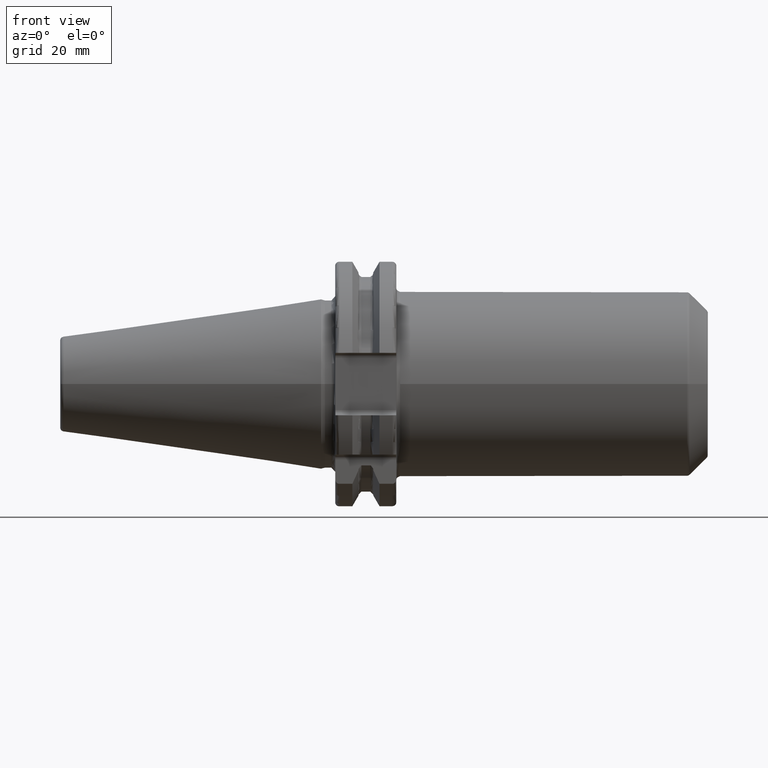
[diagram: clean part render]
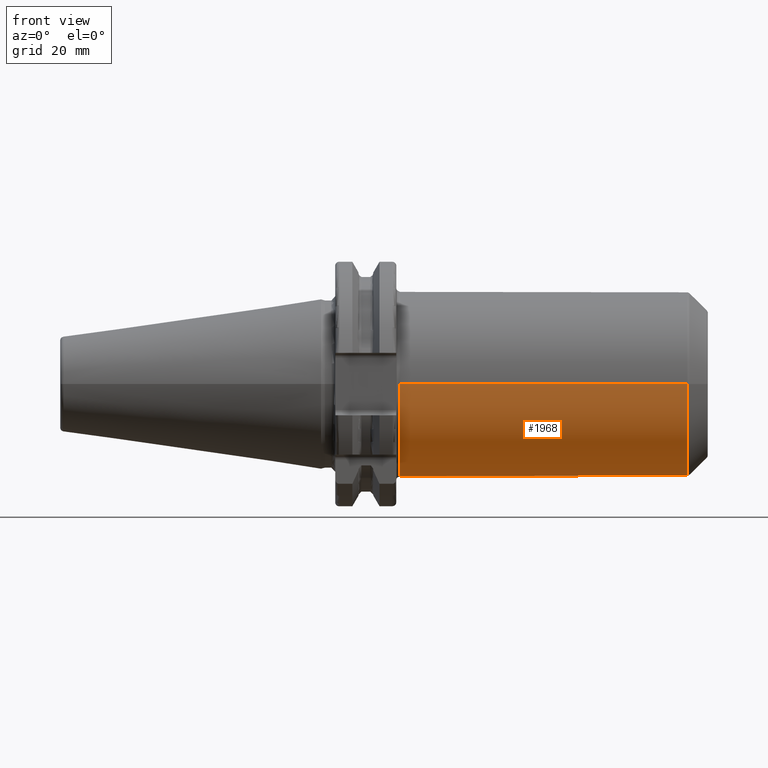
[diagram: same view with one face highlighted and labeled with its STEP entity id]
A machine part, front view. The second image highlights one B-rep face of the part: STEP entity #1968.
In plain terms, the highlighted cylindrical surface (partial cylindrical patch) has radius 24 mm, axis along (1, 0, 0).
Its self-contained STEP definition (entity closure, byte-faithful):
#134=CARTESIAN_POINT('',(1.905E1,0.E0,0.E0));
#135=DIRECTION('',(-1.E0,0.E0,0.E0));
#136=DIRECTION('',(0.E0,1.E0,0.E0));
#137=AXIS2_PLACEMENT_3D('',#134,#135,#136);
#252=CARTESIAN_POINT('',(9.458578643763E1,0.E0,0.E0));
#253=DIRECTION('',(-1.E0,0.E0,0.E0));
#254=DIRECTION('',(0.E0,1.E0,0.E0));
#255=AXIS2_PLACEMENT_3D('',#252,#253,#254);
#257=DIRECTION('',(-1.E0,0.E0,2.521249668337E-13));
#258=VECTOR('',#257,7.553578643763E1);
#259=CARTESIAN_POINT('',(9.458578643763E1,2.4E1,-1.904249821546E-11));
#260=LINE('',#259,#258);
#261=DIRECTION('',(-1.E0,0.E0,0.E0));
#262=VECTOR('',#261,1.E0);
#263=CARTESIAN_POINT('',(2.005E1,2.279133706023E1,-7.520302853414E0));
#264=LINE('',#263,#262);
#265=CARTESIAN_POINT('',(2.005E1,0.E0,0.E0));
#266=DIRECTION('',(1.E0,0.E0,0.E0));
#267=DIRECTION('',(0.E0,-1.E0,0.E0));
#268=AXIS2_PLACEMENT_3D('',#265,#266,#267);
#270=DIRECTION('',(-9.999999999953E-1,4.371371797497E-11,-3.063276622315E-6));
#271=VECTOR('',#270,7.453578643798E1);
#272=CARTESIAN_POINT('',(9.458578643763E1,-2.4E1,1.904139601998E-11));
#273=LINE('',#272,#271);
#1601=CARTESIAN_POINT('',(2.005E1,-2.4E1,0.E0));
#1602=CARTESIAN_POINT('',(2.005E1,2.279133706023E1,-7.520302853414E0));
#1603=VERTEX_POINT('',#1601);
#1604=VERTEX_POINT('',#1602);
#1619=CARTESIAN_POINT('',(9.458578643763E1,2.4E1,0.E0));
#1620=CARTESIAN_POINT('',(9.458578643763E1,-2.4E1,0.E0));
#1621=VERTEX_POINT('',#1619);
#1622=VERTEX_POINT('',#1620);
#1629=CARTESIAN_POINT('',(1.905E1,2.279133706023E1,-7.520302853414E0));
#1630=VERTEX_POINT('',#1629);
#1631=CARTESIAN_POINT('',(1.905E1,2.4E1,0.E0));
#1632=VERTEX_POINT('',#1631);
#1955=CARTESIAN_POINT('',(1.50025E1,0.E0,0.E0));
#1956=DIRECTION('',(1.E0,0.E0,0.E0));
#1957=DIRECTION('',(0.E0,-1.E0,0.E0));
#1958=AXIS2_PLACEMENT_3D('',#1955,#1956,#1957);
#1959=CYLINDRICAL_SURFACE('',#1958,2.4E1);
#1960=ORIENTED_EDGE('',*,*,#1946,.F.);
#1961=ORIENTED_EDGE('',*,*,#1921,.T.);
#1962=ORIENTED_EDGE('',*,*,#1808,.T.);
#1963=ORIENTED_EDGE('',*,*,#1827,.F.);
#1964=ORIENTED_EDGE('',*,*,#1896,.F.);
#1965=ORIENTED_EDGE('',*,*,#1915,.F.);
#1966=EDGE_LOOP('',(#1960,#1961,#1962,#1963,#1964,#1965));
#1967=FACE_OUTER_BOUND('',#1966,.F.);
#1968=ADVANCED_FACE('',(#1967),#1959,.T.);
#138=CIRCLE('',#137,2.4E1);
#256=CIRCLE('',#255,2.4E1);
#269=CIRCLE('',#268,2.4E1);
#1808=EDGE_CURVE('',#1632,#1630,#138,.T.);
#1827=EDGE_CURVE('',#1604,#1630,#264,.T.);
#1896=EDGE_CURVE('',#1603,#1604,#269,.T.);
#1915=EDGE_CURVE('',#1622,#1603,#273,.T.);
#1921=EDGE_CURVE('',#1621,#1632,#260,.T.);
#1946=EDGE_CURVE('',#1621,#1622,#256,.T.);